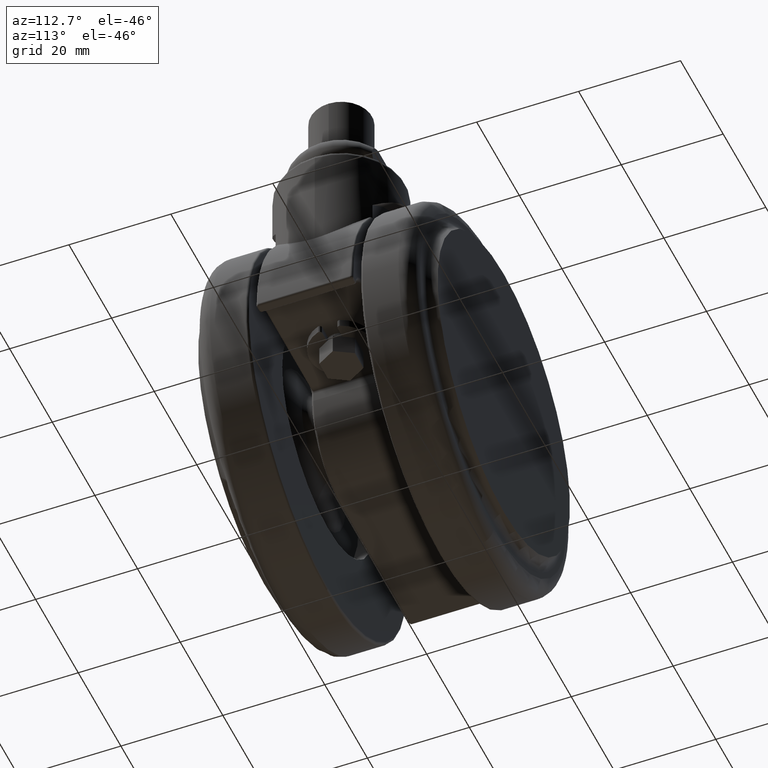
[diagram: clean part render]
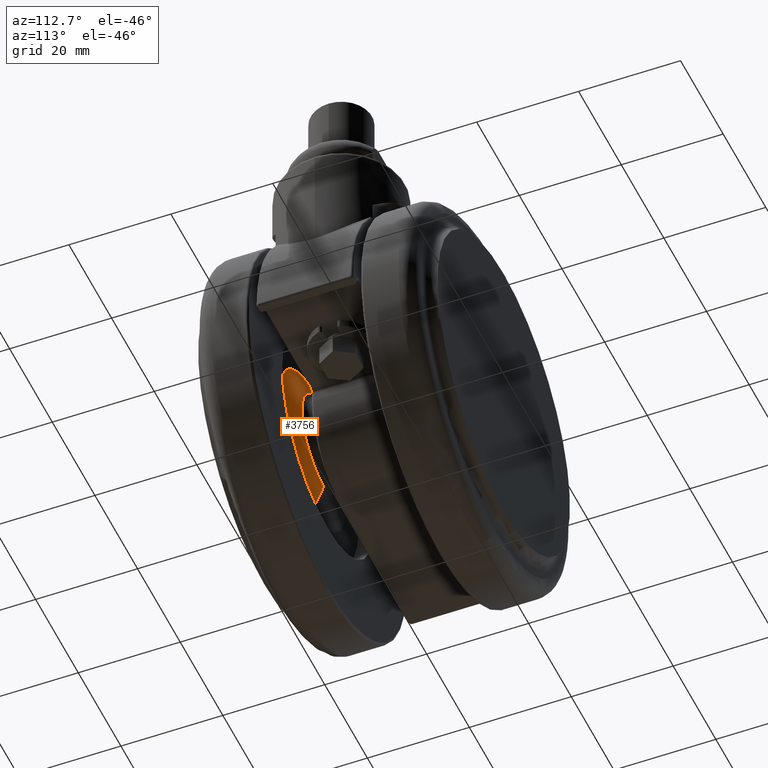
[diagram: same view with one face highlighted and labeled with its STEP entity id]
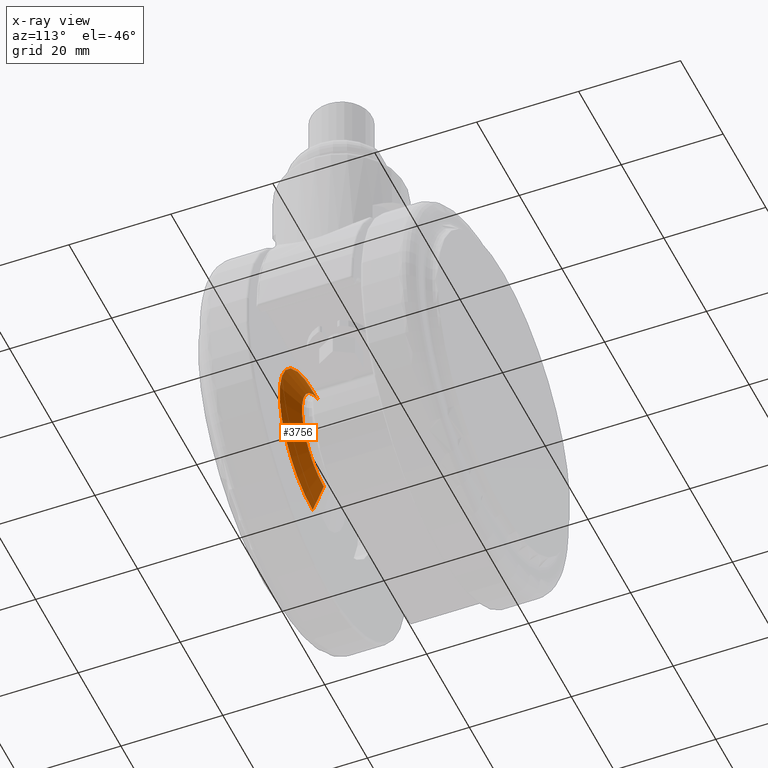
[diagram: x-ray of the same camera — body ghosted, the highlighted face saturated]
A machine part, auxiliary view. The second image highlights one B-rep face of the part: STEP entity #3756.
The next image is the same camera in x-ray: the body ghosted, the highlighted face saturated — about 0% of this face is hidden behind the body in this view.
In plain terms, the highlighted conical surface has half-angle 67.536 deg.
Its self-contained STEP definition (entity closure, byte-faithful):
#245 = CARTESIAN_POINT ( 'NONE',  ( -20.00000000000000000, -14.00000000000000000, -56.00000000000000000 ) ) ;
#290 = CARTESIAN_POINT ( 'NONE',  ( -20.00000000000000000, -14.00000000000000000, -56.00000000000000000 ) ) ;
#325 = EDGE_LOOP ( 'NONE', ( #742, #3027, #1608, #1479 ) ) ;
#673 = VECTOR ( 'NONE', #3540, 1000.000000000000100 ) ;
#742 = ORIENTED_EDGE ( 'NONE', *, *, #3499, .T. ) ;
#831 = DIRECTION ( 'NONE',  ( 1.131719590282663600E-016, -0.3821043699168795200, 0.9241191754803188600 ) ) ;
#899 = DIRECTION ( 'NONE',  ( 0.0000000000000000000, -1.000000000000000000, 0.0000000000000000000 ) ) ;
#941 = CIRCLE ( 'NONE', #3889, 10.23579126016620200 ) ;
#1091 = CARTESIAN_POINT ( 'NONE',  ( -19.99999999999999600, -14.00000000000000000, -25.00000000000000000 ) ) ;
#1102 = VERTEX_POINT ( 'NONE', #2899 ) ;
#1150 = DIRECTION ( 'NONE',  ( 0.0000000000000000000, -1.000000000000000000, 0.0000000000000000000 ) ) ;
#1198 = CARTESIAN_POINT ( 'NONE',  ( -20.00000000000000000, -14.00000000000000000, -40.50000000000000000 ) ) ;
#1416 = CARTESIAN_POINT ( 'NONE',  ( -20.00000000000000000, -11.82335740127932100, -50.73579126016620200 ) ) ;
#1479 = ORIENTED_EDGE ( 'NONE', *, *, #2212, .F. ) ;
#1524 = VERTEX_POINT ( 'NONE', #2941 ) ;
#1608 = ORIENTED_EDGE ( 'NONE', *, *, #1814, .F. ) ;
#1722 = CONICAL_SURFACE ( 'NONE', #2610, 15.50000000000000000, 1.178723936475072600 ) ;
#1814 = EDGE_CURVE ( 'NONE', #2739, #1524, #3335, .T. ) ;
#1952 = EDGE_CURVE ( 'NONE', #1102, #1524, #3067, .T. ) ;
#2046 = DIRECTION ( 'NONE',  ( 0.0000000000000000000, 0.0000000000000000000, -1.000000000000000000 ) ) ;
#2047 = AXIS2_PLACEMENT_3D ( 'NONE', #2439, #1150, #2046 ) ;
#2212 = EDGE_CURVE ( 'NONE', #3400, #2739, #3910, .T. ) ;
#2439 = CARTESIAN_POINT ( 'NONE',  ( -20.00000000000000000, -14.00000000000000000, -40.50000000000000000 ) ) ;
#2610 = AXIS2_PLACEMENT_3D ( 'NONE', #1198, #3931, #3033 ) ;
#2626 = FACE_OUTER_BOUND ( 'NONE', #325, .T. ) ;
#2728 = CARTESIAN_POINT ( 'NONE',  ( -20.00000000000000000, -11.82335740127932100, -40.50000000000000000 ) ) ;
#2739 = VERTEX_POINT ( 'NONE', #245 ) ;
#2899 = CARTESIAN_POINT ( 'NONE',  ( -19.99999999999999600, -11.82335740127932100, -30.26420873983379800 ) ) ;
#2941 = CARTESIAN_POINT ( 'NONE',  ( -19.99999999999999600, -14.00000000000000000, -25.00000000000000000 ) ) ;
#2972 = VECTOR ( 'NONE', #831, 1000.000000000000100 ) ;
#3027 = ORIENTED_EDGE ( 'NONE', *, *, #1952, .T. ) ;
#3033 = DIRECTION ( 'NONE',  ( 0.0000000000000000000, 0.0000000000000000000, -1.000000000000000000 ) ) ;
#3035 = DIRECTION ( 'NONE',  ( 0.0000000000000000000, 0.0000000000000000000, -1.000000000000000000 ) ) ;
#3067 = LINE ( 'NONE', #1091, #2972 ) ;
#3335 = CIRCLE ( 'NONE', #2047, 15.50000000000000000 ) ;
#3400 = VERTEX_POINT ( 'NONE', #1416 ) ;
#3499 = EDGE_CURVE ( 'NONE', #3400, #1102, #941, .T. ) ;
#3540 = DIRECTION ( 'NONE',  ( 0.0000000000000000000, -0.3821043699168795200, -0.9241191754803188600 ) ) ;
#3756 = ADVANCED_FACE ( 'NONE', ( #2626 ), #1722, .T. ) ;
#3889 = AXIS2_PLACEMENT_3D ( 'NONE', #2728, #899, #3035 ) ;
#3910 = LINE ( 'NONE', #290, #673 ) ;
#3931 = DIRECTION ( 'NONE',  ( 0.0000000000000000000, -1.000000000000000000, 0.0000000000000000000 ) ) ;